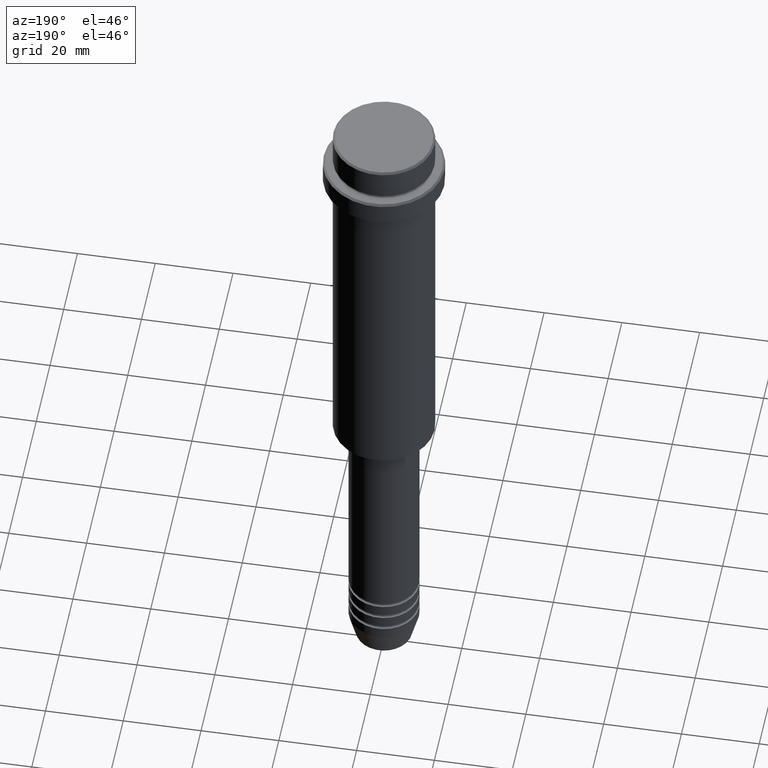
[diagram: clean part render]
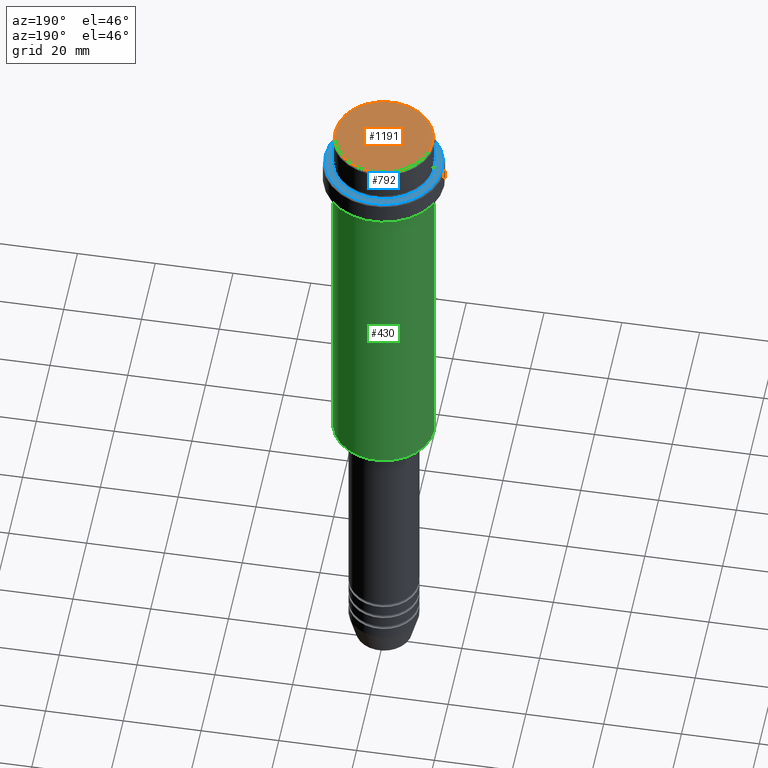
[diagram: same view with three faces highlighted in distinct colors, each labeled with its STEP entity id]
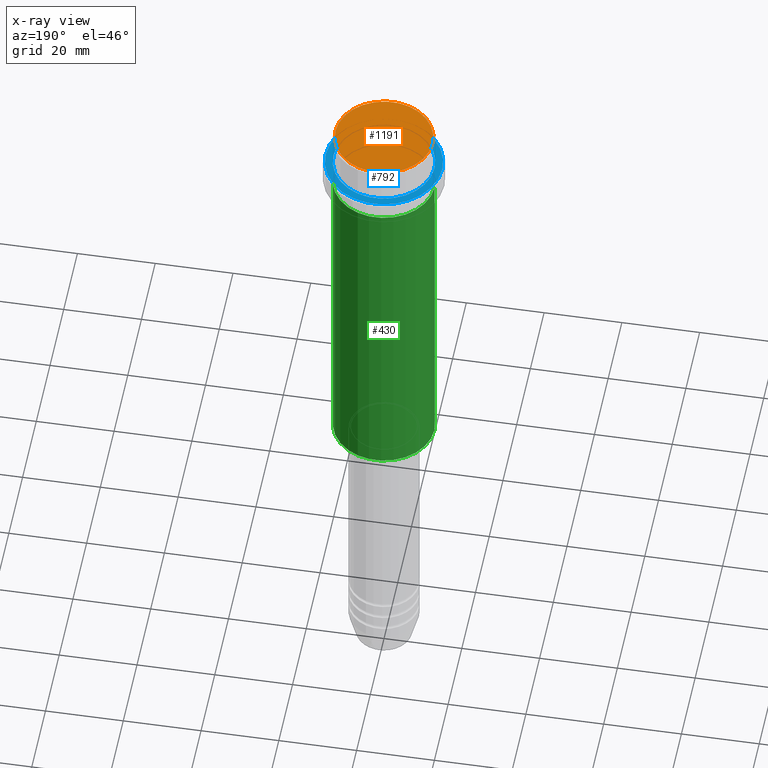
[diagram: x-ray of the same camera — body ghosted, the three highlighted faces saturated]
A machine part, auxiliary view with three faces highlighted in distinct colors.
The next image is the same camera in x-ray (body ghosted, the three faces saturated) — at least one of them is partly hidden behind the body in this view.
Their STEP definitions:

[orange] entity #1191 — the highlighted planar face has unit normal (0, -0, 1).
#78 = DIRECTION ( 'NONE',  ( -0.000000000000000000, -0.000000000000000000, 1.000000000000000000 ) ) ;
#167 = EDGE_CURVE ( 'NONE', #1306, #546, #412, .T. ) ;
#183 = CARTESIAN_POINT ( 'NONE',  ( 0.000000000000000000, 0.000000000000000000, 0.000000000000000000 ) ) ;
#195 = DIRECTION ( 'NONE',  ( 1.000000000000000000, 0.000000000000000000, 0.000000000000000000 ) ) ;
#300 = FACE_OUTER_BOUND ( 'NONE', #1408, .T. ) ;
#412 = CIRCLE ( 'NONE', #734, 12.50000000000001243 ) ;
#419 = AXIS2_PLACEMENT_3D ( 'NONE', #183, #951, #1370 ) ;
#420 = DIRECTION ( 'NONE',  ( 1.000000000000000000, 0.000000000000000000, 0.000000000000000000 ) ) ;
#546 = VERTEX_POINT ( 'NONE', #1411 ) ;
#734 = AXIS2_PLACEMENT_3D ( 'NONE', #940, #78, #420 ) ;
#831 = EDGE_CURVE ( 'NONE', #546, #1306, #1146, .T. ) ;
#910 = CARTESIAN_POINT ( 'NONE',  ( -12.50000000000001243, 0.000000000000000000, 0.000000000000000000 ) ) ;
#940 = CARTESIAN_POINT ( 'NONE',  ( 0.000000000000000000, 0.000000000000000000, 0.000000000000000000 ) ) ;
#951 = DIRECTION ( 'NONE',  ( -0.000000000000000000, -0.000000000000000000, 1.000000000000000000 ) ) ;
#979 = PLANE ( 'NONE',  #1077 ) ;
#1077 = AXIS2_PLACEMENT_3D ( 'NONE', #1375, #1183, #195 ) ;
#1114 = ORIENTED_EDGE ( 'NONE', *, *, #167, .T. ) ;
#1146 = CIRCLE ( 'NONE', #419, 12.50000000000001243 ) ;
#1183 = DIRECTION ( 'NONE',  ( 0.000000000000000000, -0.000000000000000000, 1.000000000000000000 ) ) ;
#1191 = ADVANCED_FACE ( 'NONE', ( #300 ), #979, .T. ) ;
#1272 = ORIENTED_EDGE ( 'NONE', *, *, #831, .T. ) ;
#1306 = VERTEX_POINT ( 'NONE', #910 ) ;
#1370 = DIRECTION ( 'NONE',  ( 1.000000000000000000, 0.000000000000000000, 0.000000000000000000 ) ) ;
#1375 = CARTESIAN_POINT ( 'NONE',  ( 0.000000000000000000, 0.000000000000000000, 0.000000000000000000 ) ) ;
#1408 = EDGE_LOOP ( 'NONE', ( #1114, #1272 ) ) ;
#1411 = CARTESIAN_POINT ( 'NONE',  ( 12.50000000000001243, 1.561424668912876097E-15, 0.000000000000000000 ) ) ;

[blue] entity #792 — the highlighted planar face has unit normal (0, -0, 1).
#23 = FACE_BOUND ( 'NONE', #139, .T. ) ;
#60 = VERTEX_POINT ( 'NONE', #1071 ) ;
#95 = CIRCLE ( 'NONE', #494, 14.99999999999998579 ) ;
#114 = DIRECTION ( 'NONE',  ( 0.000000000000000000, -0.000000000000000000, 1.000000000000000000 ) ) ;
#133 = CARTESIAN_POINT ( 'NONE',  ( 0.000000000000000000, 0.000000000000000000, -8.999999999999987566 ) ) ;
#139 = EDGE_LOOP ( 'NONE', ( #1241, #1061 ) ) ;
#179 = DIRECTION ( 'NONE',  ( 1.000000000000000000, 0.000000000000000000, 0.000000000000000000 ) ) ;
#184 = CARTESIAN_POINT ( 'NONE',  ( 14.99999999999998579, 1.867586368699712587E-15, -8.999999999999987566 ) ) ;
#188 = CARTESIAN_POINT ( 'NONE',  ( 0.000000000000000000, 0.000000000000000000, -8.999999999999987566 ) ) ;
#198 = EDGE_LOOP ( 'NONE', ( #963, #544 ) ) ;
#205 = VERTEX_POINT ( 'NONE', #1292 ) ;
#210 = VERTEX_POINT ( 'NONE', #184 ) ;
#233 = DIRECTION ( 'NONE',  ( 1.000000000000000000, 0.000000000000000000, 0.000000000000000000 ) ) ;
#343 = CARTESIAN_POINT ( 'NONE',  ( -12.99999999999999467, 1.592040838891558504E-15, -8.999999999999987566 ) ) ;
#347 = VERTEX_POINT ( 'NONE', #343 ) ;
#442 = AXIS2_PLACEMENT_3D ( 'NONE', #1194, #518, #1095 ) ;
#494 = AXIS2_PLACEMENT_3D ( 'NONE', #133, #581, #1263 ) ;
#513 = CIRCLE ( 'NONE', #1325, 14.99999999999998579 ) ;
#518 = DIRECTION ( 'NONE',  ( 0.000000000000000000, 0.000000000000000000, -1.000000000000000000 ) ) ;
#544 = ORIENTED_EDGE ( 'NONE', *, *, #1402, .T. ) ;
#578 = FACE_OUTER_BOUND ( 'NONE', #198, .T. ) ;
#581 = DIRECTION ( 'NONE',  ( -0.000000000000000000, -0.000000000000000000, 1.000000000000000000 ) ) ;
#583 = CIRCLE ( 'NONE', #965, 12.99999999999999467 ) ;
#693 = EDGE_CURVE ( 'NONE', #60, #210, #95, .T. ) ;
#751 = DIRECTION ( 'NONE',  ( 1.000000000000000000, 0.000000000000000000, 0.000000000000000000 ) ) ;
#792 = ADVANCED_FACE ( 'NONE', ( #578, #23 ), #1341, .T. ) ;
#882 = EDGE_CURVE ( 'NONE', #205, #347, #1036, .T. ) ;
#963 = ORIENTED_EDGE ( 'NONE', *, *, #693, .T. ) ;
#965 = AXIS2_PLACEMENT_3D ( 'NONE', #188, #1307, #751 ) ;
#1036 = CIRCLE ( 'NONE', #442, 12.99999999999999467 ) ;
#1061 = ORIENTED_EDGE ( 'NONE', *, *, #1401, .T. ) ;
#1071 = CARTESIAN_POINT ( 'NONE',  ( -14.99999999999998579, 0.000000000000000000, -8.999999999999987566 ) ) ;
#1095 = DIRECTION ( 'NONE',  ( 1.000000000000000000, 0.000000000000000000, 0.000000000000000000 ) ) ;
#1144 = AXIS2_PLACEMENT_3D ( 'NONE', #1324, #114, #233 ) ;
#1173 = DIRECTION ( 'NONE',  ( -0.000000000000000000, -0.000000000000000000, 1.000000000000000000 ) ) ;
#1194 = CARTESIAN_POINT ( 'NONE',  ( 0.000000000000000000, 0.000000000000000000, -8.999999999999987566 ) ) ;
#1241 = ORIENTED_EDGE ( 'NONE', *, *, #882, .T. ) ;
#1263 = DIRECTION ( 'NONE',  ( 1.000000000000000000, 0.000000000000000000, 0.000000000000000000 ) ) ;
#1292 = CARTESIAN_POINT ( 'NONE',  ( 12.99999999999999467, 0.000000000000000000, -8.999999999999987566 ) ) ;
#1307 = DIRECTION ( 'NONE',  ( 0.000000000000000000, 0.000000000000000000, -1.000000000000000000 ) ) ;
#1324 = CARTESIAN_POINT ( 'NONE',  ( 0.000000000000000000, 12.49999999999999289, -8.999999999999987566 ) ) ;
#1325 = AXIS2_PLACEMENT_3D ( 'NONE', #1394, #1173, #179 ) ;
#1341 = PLANE ( 'NONE',  #1144 ) ;
#1394 = CARTESIAN_POINT ( 'NONE',  ( 0.000000000000000000, 0.000000000000000000, -8.999999999999987566 ) ) ;
#1401 = EDGE_CURVE ( 'NONE', #347, #205, #583, .T. ) ;
#1402 = EDGE_CURVE ( 'NONE', #210, #60, #513, .T. ) ;

[green] entity #430 — the highlighted cylindrical surface (partial cylindrical patch) has radius 13 mm, axis along (-0, -0, 1).
#59 = CARTESIAN_POINT ( 'NONE',  ( -13.00000000000000000, 1.592040838891559095E-15, 0.000000000000000000 ) ) ;
#72 = EDGE_CURVE ( 'NONE', #517, #685, #833, .T. ) ;
#120 = CIRCLE ( 'NONE', #304, 13.00000000000000000 ) ;
#128 = DIRECTION ( 'NONE',  ( -1.000000000000000000, 0.000000000000000000, 0.000000000000000000 ) ) ;
#140 = CARTESIAN_POINT ( 'NONE',  ( -13.00000000000000000, 1.592040838891559095E-15, -15.99999999999997335 ) ) ;
#141 = FACE_OUTER_BOUND ( 'NONE', #1088, .T. ) ;
#142 = ORIENTED_EDGE ( 'NONE', *, *, #1179, .F. ) ;
#143 = VECTOR ( 'NONE', #742, 1000.000000000000000 ) ;
#224 = CARTESIAN_POINT ( 'NONE',  ( 0.000000000000000000, 0.000000000000000000, -104.4999999999999574 ) ) ;
#235 = DIRECTION ( 'NONE',  ( -0.000000000000000000, -0.000000000000000000, 1.000000000000000000 ) ) ;
#272 = CARTESIAN_POINT ( 'NONE',  ( 13.00000000000000000, 0.000000000000000000, -104.4999999999999574 ) ) ;
#304 = AXIS2_PLACEMENT_3D ( 'NONE', #859, #778, #418 ) ;
#339 = CYLINDRICAL_SURFACE ( 'NONE', #759, 13.00000000000000000 ) ;
#367 = EDGE_CURVE ( 'NONE', #1021, #517, #713, .T. ) ;
#418 = DIRECTION ( 'NONE',  ( 1.000000000000000000, 0.000000000000000000, 0.000000000000000000 ) ) ;
#430 = ADVANCED_FACE ( 'NONE', ( #141 ), #339, .T. ) ;
#439 = AXIS2_PLACEMENT_3D ( 'NONE', #224, #235, #128 ) ;
#460 = ORIENTED_EDGE ( 'NONE', *, *, #72, .T. ) ;
#462 = CARTESIAN_POINT ( 'NONE',  ( 13.00000000000000000, 0.000000000000000000, 0.000000000000000000 ) ) ;
#517 = VERTEX_POINT ( 'NONE', #1185 ) ;
#565 = ORIENTED_EDGE ( 'NONE', *, *, #367, .T. ) ;
#601 = LINE ( 'NONE', #462, #886 ) ;
#681 = DIRECTION ( 'NONE',  ( 1.000000000000000000, 0.000000000000000000, 0.000000000000000000 ) ) ;
#685 = VERTEX_POINT ( 'NONE', #140 ) ;
#713 = CIRCLE ( 'NONE', #439, 13.00000000000000000 ) ;
#742 = DIRECTION ( 'NONE',  ( -0.000000000000000000, -0.000000000000000000, 1.000000000000000000 ) ) ;
#745 = CARTESIAN_POINT ( 'NONE',  ( 13.00000000000000000, 0.000000000000000000, -15.99999999999997335 ) ) ;
#759 = AXIS2_PLACEMENT_3D ( 'NONE', #805, #795, #681 ) ;
#778 = DIRECTION ( 'NONE',  ( -0.000000000000000000, -0.000000000000000000, 1.000000000000000000 ) ) ;
#795 = DIRECTION ( 'NONE',  ( -0.000000000000000000, -0.000000000000000000, 1.000000000000000000 ) ) ;
#805 = CARTESIAN_POINT ( 'NONE',  ( 0.000000000000000000, 0.000000000000000000, 0.000000000000000000 ) ) ;
#815 = VERTEX_POINT ( 'NONE', #745 ) ;
#833 = LINE ( 'NONE', #59, #143 ) ;
#859 = CARTESIAN_POINT ( 'NONE',  ( 0.000000000000000000, 0.000000000000000000, -15.99999999999997335 ) ) ;
#886 = VECTOR ( 'NONE', #1054, 1000.000000000000000 ) ;
#975 = ORIENTED_EDGE ( 'NONE', *, *, #1304, .F. ) ;
#1021 = VERTEX_POINT ( 'NONE', #272 ) ;
#1054 = DIRECTION ( 'NONE',  ( -0.000000000000000000, -0.000000000000000000, 1.000000000000000000 ) ) ;
#1088 = EDGE_LOOP ( 'NONE', ( #565, #460, #142, #975 ) ) ;
#1179 = EDGE_CURVE ( 'NONE', #815, #685, #120, .T. ) ;
#1185 = CARTESIAN_POINT ( 'NONE',  ( -13.00000000000000000, 1.592040838891559095E-15, -104.4999999999999574 ) ) ;
#1304 = EDGE_CURVE ( 'NONE', #1021, #815, #601, .T. ) ;